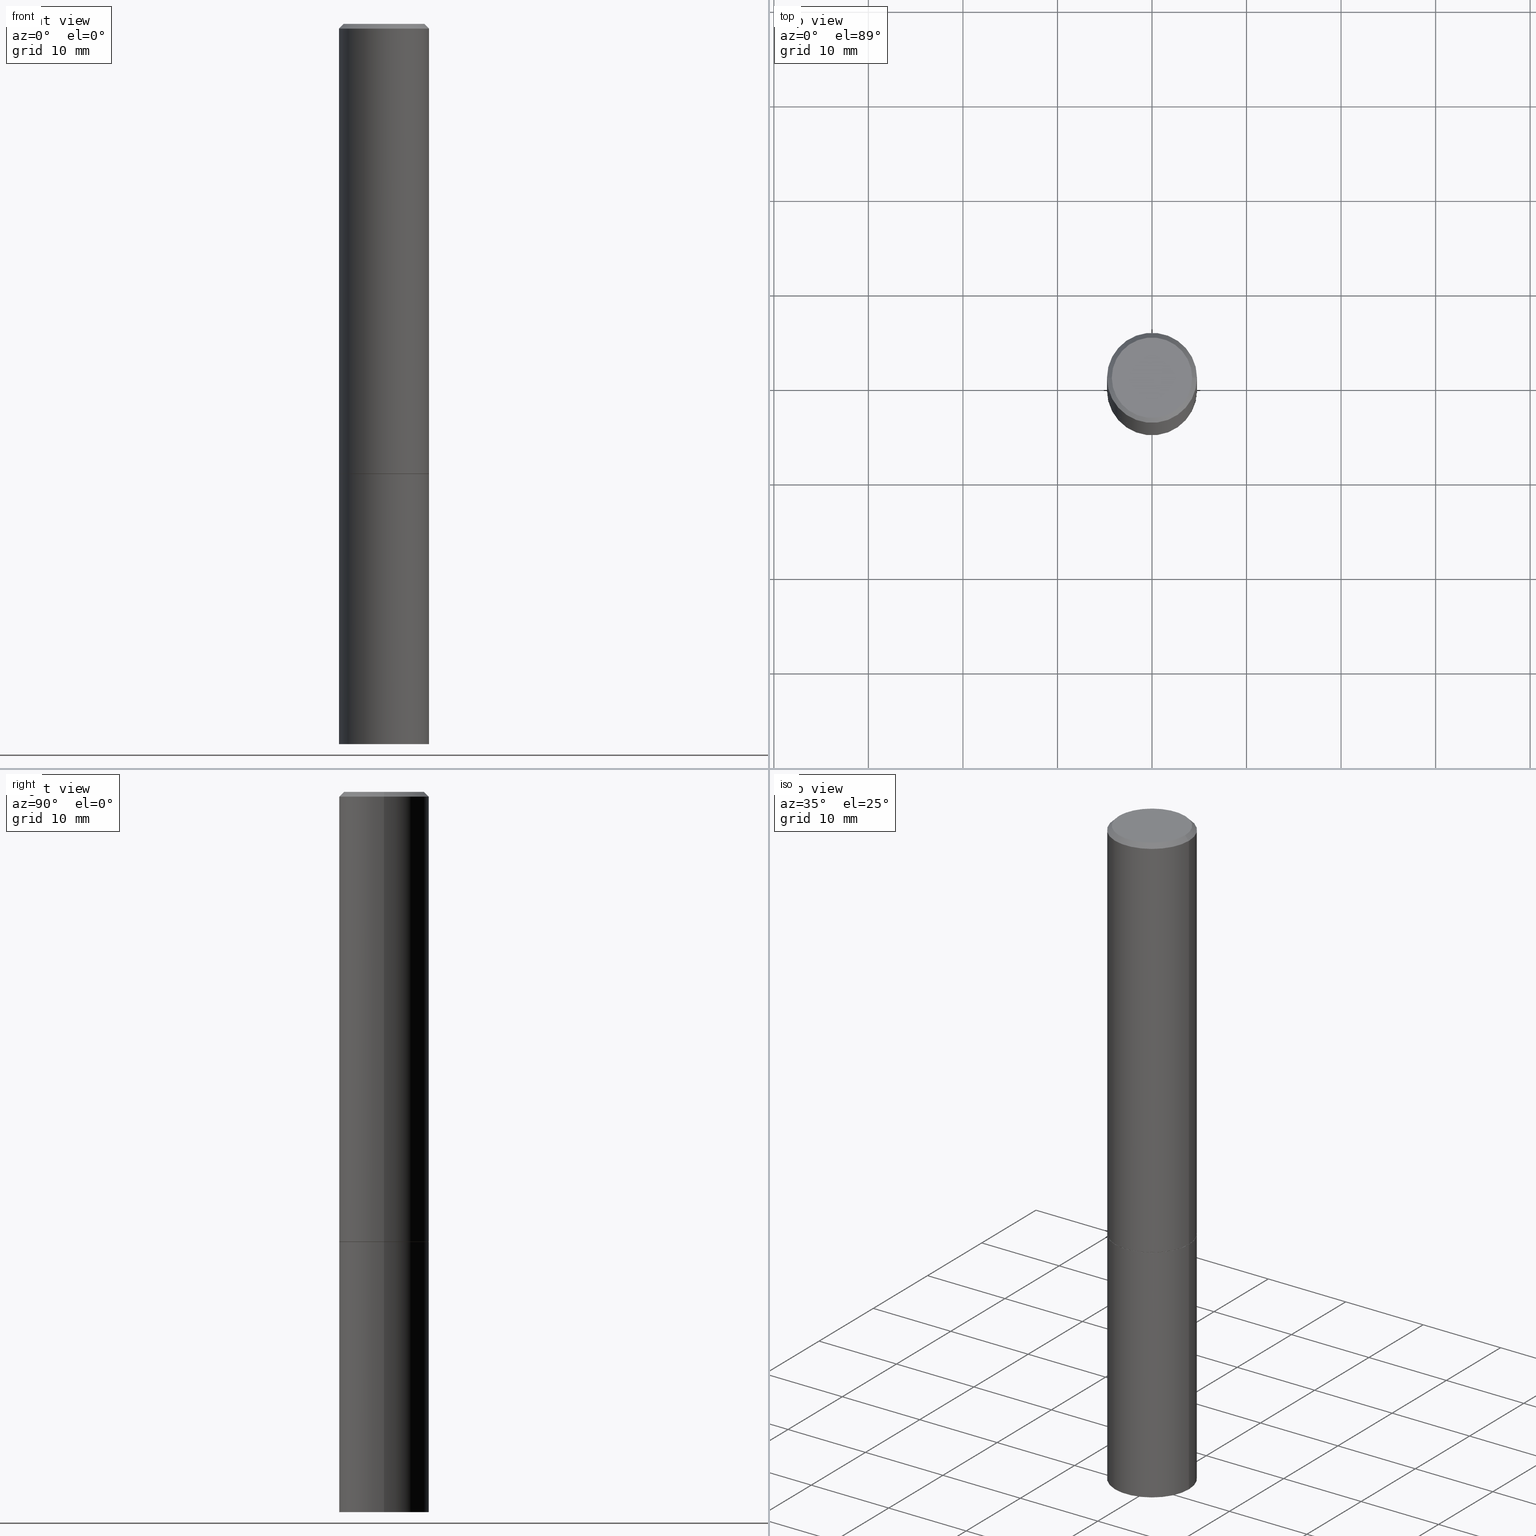
[diagram: canonical four-view strip — front | top / right | iso, engineering-drawing reading convention]
A machine part, canonical four-view strip (front | top / right | iso — engineering-drawing reading convention). The complete STEP part file that produces these views, byte-faithful:
ISO-10303-21;
HEADER;
FILE_DESCRIPTION (( 'STEP AP203' ),
    '1' );
FILE_NAME ('33107.STEP',
    '2023-03-21T20:37:46',
    ( '' ),
    ( '' ),
    'SwSTEP 2.0',
    'SolidWorks 2022',
    '' );
FILE_SCHEMA (( 'CONFIG_CONTROL_DESIGN' ));
ENDSEC;

DATA;
#1 = CARTESIAN_POINT ( 'NONE',  ( 4.585254011597130558E-29, -6.546527510330897918E-15, -1.874999999999999778 ) ) ;
#2 = CARTESIAN_POINT ( 'NONE',  ( -0.1864999999999999714, -5.221365308138311867E-15, -1.874999999999999778 ) ) ;
#3 = DIRECTION ( 'NONE',  ( 2.445468806185136597E-29, -3.491481338843145583E-15, -1.000000000000000000 ) ) ;
#4 = AXIS2_PLACEMENT_3D ( 'NONE', #216, #187, #34 ) ;
#5 = LOCAL_TIME ( 16, 37, 46.00000000000000000, #345 ) ;
#6 = DIRECTION ( 'NONE',  ( -1.000000000000000000, 6.982962677686265133E-15, 0.000000000000000000 ) ) ;
#7 = DIRECTION ( 'NONE',  ( -2.445468806185136597E-29, 3.491481338843145583E-15, 1.000000000000000000 ) ) ;
#8 =( LENGTH_UNIT ( ) NAMED_UNIT ( * ) SI_UNIT ( $, .METRE. ) );
#9 = PRODUCT_RELATED_PRODUCT_CATEGORY ( 'detail', '', ( #303 ) ) ;
#10 = CARTESIAN_POINT ( 'NONE',  ( -0.1875000000000000278, 1.332267629550188046E-15, -9.223003294227947991E-30 ) ) ;
#11 = CARTESIAN_POINT ( 'NONE',  ( 0.000000000000000000, 0.000000000000000000, 0.000000000000000000 ) ) ;
#12 = CARTESIAN_POINT ( 'NONE',  ( 0.000000000000000000, 0.000000000000000000, 0.000000000000000000 ) ) ;
#13 = EDGE_CURVE ( 'NONE', #202, #232, #47, .T. ) ;
#14 = ORIENTED_EDGE ( 'NONE', *, *, #323, .F. ) ;
#15 = FACE_OUTER_BOUND ( 'NONE', #319, .T. ) ;
#16 = DATE_TIME_ROLE ( 'creation_date' ) ;
#17 = EDGE_LOOP ( 'NONE', ( #236, #352, #117, #56 ) ) ;
#18 = DATE_AND_TIME ( #172, #261 ) ;
#19 = EDGE_CURVE ( 'NONE', #179, #356, #155, .T. ) ;
#20 = AXIS2_PLACEMENT_3D ( 'NONE', #341, #165, #6 ) ;
#21 = CALENDAR_DATE ( 2023, 21, 3 ) ;
#22 = EDGE_CURVE ( 'NONE', #264, #356, #234, .T. ) ;
#23 = COORDINATED_UNIVERSAL_TIME_OFFSET ( 5, 0, .BEHIND. ) ;
#24 = ORIENTED_EDGE ( 'NONE', *, *, #100, .F. ) ;
#25 = EDGE_CURVE ( 'NONE', #356, #179, #268, .T. ) ;
#26 = CARTESIAN_POINT ( 'NONE',  ( 0.1874999999999999167, -1.309305502066174219E-15, 9.142831454617375408E-30 ) ) ;
#27 = AXIS2_PLACEMENT_3D ( 'NONE', #197, #65, #302 ) ;
#28 = VERTEX_POINT ( 'NONE', #181 ) ;
#29 = ORIENTED_EDGE ( 'NONE', *, *, #13, .T. ) ;
#30 = CARTESIAN_POINT ( 'NONE',  ( 0.1864999999999999714, -7.848850049719386123E-15, -1.874999999999999778 ) ) ;
#31 = EDGE_CURVE ( 'NONE', #266, #28, #296, .T. ) ;
#32 = DIRECTION ( 'NONE',  ( 1.000000000000000000, -6.982962677686261189E-15, 0.000000000000000000 ) ) ;
#33 = DIRECTION ( 'NONE',  ( -2.445468806185136597E-29, 3.491481338843145583E-15, 1.000000000000000000 ) ) ;
#34 = DIRECTION ( 'NONE',  ( -1.000000000000000000, 6.982962677686265133E-15, 0.000000000000000000 ) ) ;
#35 = FACE_OUTER_BOUND ( 'NONE', #241, .T. ) ;
#36 = DIRECTION ( 'NONE',  ( 1.000000000000000000, -6.982962677686265133E-15, 0.000000000000000000 ) ) ;
#37 = APPROVAL_STATUS ( 'not_yet_approved' ) ;
#38 = CARTESIAN_POINT ( 'NONE',  ( 1.062839536534580214E-18, -1.044013511964626389E-14, -2.990173541384431033 ) ) ;
#39 = AXIS2_PLACEMENT_3D ( 'NONE', #1, #359, #183 ) ;
#40 = CC_DESIGN_SECURITY_CLASSIFICATION ( #178, ( #90 ) ) ;
#41 = FACE_OUTER_BOUND ( 'NONE', #299, .T. ) ;
#42 = CARTESIAN_POINT ( 'NONE',  ( 4.585254011597131119E-29, -6.546527510330898707E-15, -1.875000000000000000 ) ) ;
#43 = DIRECTION ( 'NONE',  ( -2.445468806185136877E-29, 3.491481338843145188E-15, 1.000000000000000000 ) ) ;
#44 = DIRECTION ( 'NONE',  ( 1.000000000000000000, -6.982962677686265922E-15, 4.876176775795935793E-29 ) ) ;
#45 = PRODUCT_DEFINITION ( 'UNKNOWN', '', #90, #203 ) ;
#46 = CARTESIAN_POINT ( 'NONE',  ( 1.309305502066220959E-15, 0.1874999999999934497, -1.875000000000000666 ) ) ;
#47 = CIRCLE ( 'NONE', #88, 0.1674999999999997879 ) ;
#48 = AXIS2_PLACEMENT_3D ( 'NONE', #363, #104, #101 ) ;
#49 = PERSON_AND_ORGANIZATION_ROLE ( 'creator' ) ;
#50 = EDGE_CURVE ( 'NONE', #329, #266, #206, .T. ) ;
#51 = ORIENTED_EDGE ( 'NONE', *, *, #267, .F. ) ;
#52 = AXIS2_PLACEMENT_3D ( 'NONE', #61, #301, #98 ) ;
#53 = APPROVAL_DATE_TIME ( #320, #390 ) ;
#54 = ORIENTED_EDGE ( 'NONE', *, *, #25, .T. ) ;
#55 = EDGE_CURVE ( 'NONE', #295, #95, #227, .T. ) ;
#56 = ORIENTED_EDGE ( 'NONE', *, *, #63, .T. ) ;
#57 = ORIENTED_EDGE ( 'NONE', *, *, #25, .F. ) ;
#58 = AXIS2_PLACEMENT_3D ( 'NONE', #76, #364, #336 ) ;
#59 = VERTEX_POINT ( 'NONE', #92 ) ;
#60 = CC_DESIGN_PERSON_AND_ORGANIZATION_ASSIGNMENT ( #72, #215, ( #303 ) ) ;
#61 = CARTESIAN_POINT ( 'NONE',  ( 4.890937612370283668E-31, -6.982962677686305168E-17, -0.02000000000000004205 ) ) ;
#62 = CIRCLE ( 'NONE', #39, 0.1864999999999999714 ) ;
#63 = EDGE_CURVE ( 'NONE', #199, #28, #293, .T. ) ;
#64 = MECHANICAL_CONTEXT ( 'NONE', #305, 'mechanical' ) ;
#65 = DIRECTION ( 'NONE',  ( 0.000000000000000000, 0.000000000000000000, 1.000000000000000000 ) ) ;
#66 = DIRECTION ( 'NONE',  ( 0.7071067811865466846, -7.319954787623252890E-15, -0.7071067811865483499 ) ) ;
#67 = DIRECTION ( 'NONE',  ( -2.445468806185136597E-29, 3.491481338843145583E-15, 1.000000000000000000 ) ) ;
#68 = ADVANCED_FACE ( 'NONE', ( #129 ), #176, .T. ) ;
#69 = CYLINDRICAL_SURFACE ( 'NONE', #284, 0.1874999999999999167 ) ;
#70 = CONICAL_SURFACE ( 'NONE', #58, 0.1864999999999999714, 0.7853981633975678500 ) ;
#71 = LOCAL_TIME ( 16, 37, 46.00000000000000000, #257 ) ;
#72 = PERSON_AND_ORGANIZATION ( #109, #243 ) ;
#73 = CC_DESIGN_PERSON_AND_ORGANIZATION_ASSIGNMENT ( #263, #287, ( #90 ) ) ;
#74 = DIRECTION ( 'NONE',  ( -2.445468806185136597E-29, 3.491481338843145583E-15, 1.000000000000000000 ) ) ;
#75 = CC_DESIGN_PERSON_AND_ORGANIZATION_ASSIGNMENT ( #317, #380, ( #45 ) ) ;
#76 = CARTESIAN_POINT ( 'NONE',  ( 4.585254011597130558E-29, -6.546527510330897918E-15, -1.874999999999999778 ) ) ;
#77 = CARTESIAN_POINT ( 'NONE',  ( 1.169646248512448215E-15, 0.1674999999999997879, -5.848231242562260795E-16 ) ) ;
#78 = PERSON_AND_ORGANIZATION ( #109, #243 ) ;
#79 = APPROVAL_PERSON_ORGANIZATION ( #304, #177, #161 ) ;
#80 = CALENDAR_DATE ( 2023, 21, 3 ) ;
#81 = ORIENTED_EDGE ( 'NONE', *, *, #13, .F. ) ;
#82 = APPROVAL_ROLE ( '' ) ;
#83 = ADVANCED_BREP_SHAPE_REPRESENTATION ( '33107', ( #137, #385, #27 ), #361 ) ;
#84 = CIRCLE ( 'NONE', #308, 0.1864999999999999714 ) ;
#85 = ORIENTED_EDGE ( 'NONE', *, *, #342, .T. ) ;
#86 = DIRECTION ( 'NONE',  ( -2.445468806185136877E-29, 3.491481338843145188E-15, 1.000000000000000000 ) ) ;
#87 = APPLICATION_CONTEXT ( 'configuration controlled 3d designs of mechanical parts and assemblies' ) ;
#88 = AXIS2_PLACEMENT_3D ( 'NONE', #209, #151, #91 ) ;
#89 = ADVANCED_FACE ( 'NONE', ( #158 ), #275, .T. ) ;
#90 = PRODUCT_DEFINITION_FORMATION_WITH_SPECIFIED_SOURCE ( 'ANY', '', #303, .NOT_KNOWN. ) ;
#91 = DIRECTION ( 'NONE',  ( 1.000000000000000000, -6.982962677686266711E-15, 4.876176775795935793E-29 ) ) ;
#92 = CARTESIAN_POINT ( 'NONE',  ( -0.1864999999999999714, -5.216066853790089465E-15, -1.874999999999999778 ) ) ;
#93 = ORIENTED_EDGE ( 'NONE', *, *, #338, .F. ) ;
#94 = ADVANCED_FACE ( 'NONE', ( #35 ), #70, .T. ) ;
#95 = VERTEX_POINT ( 'NONE', #102 ) ;
#96 = DIRECTION ( 'NONE',  ( -2.445468806185136597E-29, 3.491481338843145583E-15, 1.000000000000000000 ) ) ;
#97 = EDGE_CURVE ( 'NONE', #59, #329, #84, .T. ) ;
#98 = DIRECTION ( 'NONE',  ( 1.000000000000000000, -6.982962677686265133E-15, 0.000000000000000000 ) ) ;
#99 = DIRECTION ( 'NONE',  ( -2.445468806185136597E-29, 3.491481338843145583E-15, 1.000000000000000000 ) ) ;
#100 = EDGE_CURVE ( 'NONE', #264, #179, #310, .T. ) ;
#101 = DIRECTION ( 'NONE',  ( 1.000000000000000000, -6.982962677686266711E-15, 0.000000000000000000 ) ) ;
#102 = CARTESIAN_POINT ( 'NONE',  ( 0.1875000000000000278, -7.855833012397073715E-15, -1.875000000000000000 ) ) ;
#103 = DIRECTION ( 'NONE',  ( -0.7071067811865466846, 2.468850131082247989E-15, -0.7071067811865483499 ) ) ;
#104 = DIRECTION ( 'NONE',  ( -2.445468806185136597E-29, 3.491481338843145583E-15, 1.000000000000000000 ) ) ;
#105 = DIRECTION ( 'NONE',  ( 1.000000000000000000, -6.982962677686266711E-15, 0.000000000000000000 ) ) ;
#106 = AXIS2_PLACEMENT_3D ( 'NONE', #111, #344, #36 ) ;
#107 = DIRECTION ( 'NONE',  ( -0.7071067811866320607, 7.493145998870660238E-15, 0.7071067811864629737 ) ) ;
#108 = PLANE ( 'NONE',  #130 ) ;
#109 = PERSON ( 'UNSPECIFIED', 'UNSPECIFIED', 'UNSPECIFIED', ('UNSPECIFIED'), ('UNSPECIFIED'), ('UNSPECIFIED') ) ;
#110 = DATE_AND_TIME ( #21, #5 ) ;
#111 = CARTESIAN_POINT ( 'NONE',  ( 4.890937612370283668E-31, -6.982962677686305168E-17, -0.02000000000000004205 ) ) ;
#112 = SHAPE_DEFINITION_REPRESENTATION ( #328, #83 ) ;
#113 = AXIS2_PLACEMENT_3D ( 'NONE', #192, #74, #105 ) ;
#114 = SECURITY_CLASSIFICATION_LEVEL ( 'unclassified' ) ;
#115 = ORIENTED_EDGE ( 'NONE', *, *, #347, .T. ) ;
#116 = CALENDAR_DATE ( 2023, 21, 3 ) ;
#117 = ORIENTED_EDGE ( 'NONE', *, *, #267, .T. ) ;
#118 = CIRCLE ( 'NONE', #113, 0.1875000000000000278 ) ;
#119 = CC_DESIGN_APPROVAL ( #174, ( #178 ) ) ;
#120 = ORIENTED_EDGE ( 'NONE', *, *, #276, .F. ) ;
#121 = DIRECTION ( 'NONE',  ( -2.445468806185136597E-29, 3.491481338843145583E-15, 1.000000000000000000 ) ) ;
#122 = ORIENTED_EDGE ( 'NONE', *, *, #387, .F. ) ;
#123 = DIRECTION ( 'NONE',  ( 0.7071067811866320607, -2.468850131083142557E-15, 0.7071067811864629737 ) ) ;
#124 = DIMENSIONAL_EXPONENTS ( 1.000000000000000000, 0.000000000000000000, 0.000000000000000000, 0.000000000000000000, 0.000000000000000000, 0.000000000000000000, 0.000000000000000000 ) ;
#125 = AXIS2_PLACEMENT_3D ( 'NONE', #42, #369, #198 ) ;
#126 = CARTESIAN_POINT ( 'NONE',  ( 7.336406418555409790E-29, -1.047444401652943635E-14, -3.000000000000000444 ) ) ;
#127 = ORIENTED_EDGE ( 'NONE', *, *, #338, .T. ) ;
#128 = ADVANCED_FACE ( 'NONE', ( #278 ), #69, .T. ) ;
#129 = FACE_OUTER_BOUND ( 'NONE', #17, .T. ) ;
#130 = AXIS2_PLACEMENT_3D ( 'NONE', #77, #224, #343 ) ;
#131 = DIRECTION ( 'NONE',  ( -2.445468806185136877E-29, 3.491481338843145188E-15, 1.000000000000000000 ) ) ;
#132 = FACE_OUTER_BOUND ( 'NONE', #349, .T. ) ;
#133 = CARTESIAN_POINT ( 'NONE',  ( -0.1874999999999996947, -9.165138514463264501E-15, -3.000000000000000444 ) ) ;
#134 = CARTESIAN_POINT ( 'NONE',  ( 0.1875000000000000278, -7.852341531058230708E-15, -1.874000000000000110 ) ) ;
#135 =( NAMED_UNIT ( * ) PLANE_ANGLE_UNIT ( ) SI_UNIT ( $, .RADIAN. ) );
#136 = CARTESIAN_POINT ( 'NONE',  ( 0.1874999999999997780, -1.356173001359023691E-15, -0.02000000000000004205 ) ) ;
#137 = MANIFOLD_SOLID_BREP ( 'Body-Move/Copy2[1]', #189 ) ;
#138 = CARTESIAN_POINT ( 'NONE',  ( -0.1874999999999999167, 1.332267629550187257E-15, -9.223003294227943787E-30 ) ) ;
#139 = CARTESIAN_POINT ( 'NONE',  ( 0.000000000000000000, 0.000000000000000000, 0.000000000000000000 ) ) ;
#140 = VECTOR ( 'NONE', #43, 39.37007874015748143 ) ;
#141 = ORIENTED_EDGE ( 'NONE', *, *, #97, .F. ) ;
#142 = DIRECTION ( 'NONE',  ( -2.445468806185136597E-29, 3.491481338843145583E-15, 1.000000000000000000 ) ) ;
#143 = PERSON_AND_ORGANIZATION_ROLE ( 'classification_officer' ) ;
#144 = EDGE_LOOP ( 'NONE', ( #288, #240, #154, #322 ) ) ;
#145 = APPROVAL_DATE_TIME ( #18, #177 ) ;
#146 = AXIS2_PLACEMENT_3D ( 'NONE', #354, #367, #309 ) ;
#147 = DATE_AND_TIME ( #289, #327 ) ;
#148 = ADVANCED_FACE ( 'NONE', ( #200 ), #389, .F. ) ;
#149 = ORIENTED_EDGE ( 'NONE', *, *, #19, .F. ) ;
#150 = EDGE_LOOP ( 'NONE', ( #120, #141 ) ) ;
#151 = DIRECTION ( 'NONE',  ( -2.445468806185136597E-29, 3.491481338843145583E-15, 1.000000000000000000 ) ) ;
#152 = FACE_OUTER_BOUND ( 'NONE', #298, .T. ) ;
#153 = ORIENTED_EDGE ( 'NONE', *, *, #22, .T. ) ;
#154 = ORIENTED_EDGE ( 'NONE', *, *, #342, .F. ) ;
#155 = CIRCLE ( 'NONE', #370, 0.1875000000000000278 ) ;
#156 = LOCAL_TIME ( 16, 37, 46.00000000000000000, #23 ) ;
#157 = DIRECTION ( 'NONE',  ( 1.000000000000000000, -6.982962677686261189E-15, 0.000000000000000000 ) ) ;
#158 = FACE_OUTER_BOUND ( 'NONE', #186, .T. ) ;
#159 = APPLICATION_PROTOCOL_DEFINITION ( 'international standard', 'config_control_design', 1994, #87 ) ;
#160 = CARTESIAN_POINT ( 'NONE',  ( -0.1674999999999997879, 1.204561061900879272E-15, -8.301862719484101980E-30 ) ) ;
#161 = APPROVAL_ROLE ( '' ) ;
#162 = CYLINDRICAL_SURFACE ( 'NONE', #377, 0.1875000000000000278 ) ;
#163 = EDGE_CURVE ( 'NONE', #202, #28, #220, .T. ) ;
#164 = CARTESIAN_POINT ( 'NONE',  ( 0.1674999999999997879, -1.252653207992876908E-15, 8.469775550109228175E-30 ) ) ;
#165 = DIRECTION ( 'NONE',  ( 2.445468806185136597E-29, -3.491481338843145583E-15, -1.000000000000000000 ) ) ;
#166 = FACE_OUTER_BOUND ( 'NONE', #150, .T. ) ;
#167 = APPLICATION_PROTOCOL_DEFINITION ( 'international standard', 'config_control_design', 1994, #305 ) ;
#168 = DIRECTION ( 'NONE',  ( 0.9986295347545742773, -7.033825938272001856E-15, -0.05233595624293820026 ) ) ;
#169 = CIRCLE ( 'NONE', #383, 0.1674999999999997879 ) ;
#170 = PERSON_AND_ORGANIZATION ( #109, #243 ) ;
#171 = EDGE_LOOP ( 'NONE', ( #24, #153, #149 ) ) ;
#172 = CALENDAR_DATE ( 2023, 21, 3 ) ;
#173 = ORIENTED_EDGE ( 'NONE', *, *, #19, .T. ) ;
#174 = APPROVAL ( #231, 'UNSPECIFIED' ) ;
#175 = EDGE_CURVE ( 'NONE', #212, #266, #118, .T. ) ;
#176 = CONICAL_SURFACE ( 'NONE', #4, 0.1874999999999997780, 0.7853981633974471688 ) ;
#177 = APPROVAL ( #37, 'UNSPECIFIED' ) ;
#178 = SECURITY_CLASSIFICATION ( '', '', #114 ) ;
#179 = VERTEX_POINT ( 'NONE', #339 ) ;
#180 = ADVANCED_FACE ( 'NONE', ( #249 ), #108, .F. ) ;
#181 = CARTESIAN_POINT ( 'NONE',  ( 0.1874999999999997780, -1.356173001359023691E-15, -0.02000000000000004205 ) ) ;
#182 = EDGE_LOOP ( 'NONE', ( #93, #384, #373, #235 ) ) ;
#183 = DIRECTION ( 'NONE',  ( 1.000000000000000000, -6.982962677686269077E-15, 0.000000000000000000 ) ) ;
#184 = AXIS2_PLACEMENT_3D ( 'NONE', #253, #3, #281 ) ;
#185 = DIRECTION ( 'NONE',  ( -2.445468806185136597E-29, 3.491481338843145583E-15, 1.000000000000000000 ) ) ;
#186 = EDGE_LOOP ( 'NONE', ( #85, #127, #318, #258 ) ) ;
#187 = DIRECTION ( 'NONE',  ( 2.445468806185136597E-29, -3.491481338843145583E-15, -1.000000000000000000 ) ) ;
#188 = CC_DESIGN_DATE_AND_TIME_ASSIGNMENT ( #110, #16, ( #45 ) ) ;
#189 = CLOSED_SHELL ( 'NONE', ( #255, #280, #148, #211, #196 ) ) ;
#190 = AXIS2_PLACEMENT_3D ( 'NONE', #245, #67, #277 ) ;
#191 = ADVANCED_FACE ( 'NONE', ( #166 ), #283, .F. ) ;
#192 = CARTESIAN_POINT ( 'NONE',  ( 4.582808542790945516E-29, -6.543036028992054911E-15, -1.874000000000000110 ) ) ;
#193 = VECTOR ( 'NONE', #86, 39.37007874015748143 ) ;
#194 = FACE_OUTER_BOUND ( 'NONE', #353, .T. ) ;
#195 = DIRECTION ( 'NONE',  ( -1.000000000000000000, 6.982962677686265922E-15, -4.876176775795935793E-29 ) ) ;
#196 = ADVANCED_FACE ( 'NONE', ( #194 ), #313, .F. ) ;
#197 = CARTESIAN_POINT ( 'NONE',  ( 0.000000000000000000, 0.000000000000000000, 0.000000000000000000 ) ) ;
#198 = DIRECTION ( 'NONE',  ( 1.000000000000000000, -6.982962677686265922E-15, 4.876176775795935793E-29 ) ) ;
#199 = VERTEX_POINT ( 'NONE', #306 ) ;
#200 = FACE_OUTER_BOUND ( 'NONE', #171, .T. ) ;
#201 = ORIENTED_EDGE ( 'NONE', *, *, #366, .T. ) ;
#202 = VERTEX_POINT ( 'NONE', #164 ) ;
#203 = DESIGN_CONTEXT ( 'detailed design', #87, 'design' ) ;
#204 = CIRCLE ( 'NONE', #190, 0.1875000000000000278 ) ;
#205 = ORIENTED_EDGE ( 'NONE', *, *, #163, .T. ) ;
#206 = LINE ( 'NONE', #30, #340 ) ;
#207 = ORIENTED_EDGE ( 'NONE', *, *, #333, .T. ) ;
#208 = AXIS2_PLACEMENT_3D ( 'NONE', #358, #96, #213 ) ;
#209 = CARTESIAN_POINT ( 'NONE',  ( 0.000000000000000000, 0.000000000000000000, 0.000000000000000000 ) ) ;
#210 = DIRECTION ( 'NONE',  ( -2.445468806185136597E-29, 3.491481338843145583E-15, 1.000000000000000000 ) ) ;
#211 = ADVANCED_FACE ( 'NONE', ( #15 ), #226, .T. ) ;
#212 = VERTEX_POINT ( 'NONE', #374 ) ;
#213 = DIRECTION ( 'NONE',  ( 1.000000000000000000, -6.982962677686265922E-15, 4.876176775795935793E-29 ) ) ;
#214 = CIRCLE ( 'NONE', #48, 0.1875000000000000278 ) ;
#215 = PERSON_AND_ORGANIZATION_ROLE ( 'design_owner' ) ;
#216 = CARTESIAN_POINT ( 'NONE',  ( 4.890937612370283668E-31, -6.982962677686305168E-17, -0.02000000000000004205 ) ) ;
#217 = CARTESIAN_POINT ( 'NONE',  ( -0.1875000000000000278, -7.178218133879978893E-15, -1.875000000000000000 ) ) ;
#218 = DIRECTION ( 'NONE',  ( 1.000000000000000000, -6.982962677686265922E-15, 4.876176775795935793E-29 ) ) ;
#219 = LINE ( 'NONE', #279, #300 ) ;
#220 = LINE ( 'NONE', #136, #233 ) ;
#221 = VECTOR ( 'NONE', #103, 39.37007874015748143 ) ;
#222 =( CONVERSION_BASED_UNIT ( 'INCH', #223 ) LENGTH_UNIT ( ) NAMED_UNIT ( #124 ) );
#223 = LENGTH_MEASURE_WITH_UNIT ( LENGTH_MEASURE( 0.02539999999999999897 ), #8 );
#224 = DIRECTION ( 'NONE',  ( 2.438088387897960049E-29, -3.491481338843145188E-15, -1.000000000000000000 ) ) ;
#225 = UNCERTAINTY_MEASURE_WITH_UNIT (LENGTH_MEASURE( 1.000000000000000082E-05 ), #222, 'distance_accuracy_value', 'NONE');
#226 = CYLINDRICAL_SURFACE ( 'NONE', #332, 0.1875000000000000278 ) ;
#227 = CIRCLE ( 'NONE', #355, 0.1875000000000000278 ) ;
#228 = EDGE_CURVE ( 'NONE', #28, #199, #297, .T. ) ;
#229 = DATE_TIME_ROLE ( 'classification_date' ) ;
#230 = ORIENTED_EDGE ( 'NONE', *, *, #50, .T. ) ;
#231 = APPROVAL_STATUS ( 'not_yet_approved' ) ;
#232 = VERTEX_POINT ( 'NONE', #160 ) ;
#233 = VECTOR ( 'NONE', #66, 39.37007874015748143 ) ;
#234 = LINE ( 'NONE', #351, #307 ) ;
#235 = ORIENTED_EDGE ( 'NONE', *, *, #63, .F. ) ;
#236 = ORIENTED_EDGE ( 'NONE', *, *, #163, .F. ) ;
#237 = DIRECTION ( 'NONE',  ( 1.000000000000000000, -6.982962677686266711E-15, 0.000000000000000000 ) ) ;
#238 = VECTOR ( 'NONE', #131, 39.37007874015748143 ) ;
#239 = CC_DESIGN_DATE_AND_TIME_ASSIGNMENT ( #147, #229, ( #178 ) ) ;
#240 = ORIENTED_EDGE ( 'NONE', *, *, #387, .T. ) ;
#241 = EDGE_LOOP ( 'NONE', ( #122, #271, #230, #381 ) ) ;
#242 = VECTOR ( 'NONE', #168, 39.37007874015748854 ) ;
#243 = ORGANIZATION ( 'UNSPECIFIED', 'UNSPECIFIED', '' ) ;
#244 = APPROVAL_PERSON_ORGANIZATION ( #78, #390, #262 ) ;
#245 = CARTESIAN_POINT ( 'NONE',  ( 4.582808542790945516E-29, -6.543036028992054911E-15, -1.874000000000000110 ) ) ;
#246 = CARTESIAN_POINT ( 'NONE',  ( 0.000000000000000000, 0.000000000000000000, 0.000000000000000000 ) ) ;
#247 = LINE ( 'NONE', #368, #221 ) ;
#248 =( NAMED_UNIT ( * ) SI_UNIT ( $, .STERADIAN. ) SOLID_ANGLE_UNIT ( ) );
#249 = FACE_OUTER_BOUND ( 'NONE', #386, .T. ) ;
#250 = CONICAL_SURFACE ( 'NONE', #20, 0.1874999999999997780, 0.7853981633974471688 ) ;
#251 = DIRECTION ( 'NONE',  ( 1.000000000000000000, -6.982962677686266711E-15, 4.876176775795935793E-29 ) ) ;
#252 = CC_DESIGN_PERSON_AND_ORGANIZATION_ASSIGNMENT ( #259, #49, ( #90 ) ) ;
#253 = CARTESIAN_POINT ( 'NONE',  ( 1.035906755766434990E-27, -1.479000303496913744E-13, -42.36025228154191069 ) ) ;
#254 = LINE ( 'NONE', #10, #238 ) ;
#255 = ADVANCED_FACE ( 'NONE', ( #132 ), #162, .T. ) ;
#256 = DIRECTION ( 'NONE',  ( 1.000000000000000000, -6.982962677686265922E-15, 4.876176775795935793E-29 ) ) ;
#257 = COORDINATED_UNIVERSAL_TIME_OFFSET ( 5, 0, .BEHIND. ) ;
#258 = ORIENTED_EDGE ( 'NONE', *, *, #31, .F. ) ;
#259 = PERSON_AND_ORGANIZATION ( #109, #243 ) ;
#260 = AXIS2_PLACEMENT_3D ( 'NONE', #291, #121, #331 ) ;
#261 = LOCAL_TIME ( 16, 37, 46.00000000000000000, #350 ) ;
#262 = APPROVAL_ROLE ( '' ) ;
#263 = PERSON_AND_ORGANIZATION ( #109, #243 ) ;
#264 = VERTEX_POINT ( 'NONE', #337 ) ;
#265 = FACE_OUTER_BOUND ( 'NONE', #144, .T. ) ;
#266 = VERTEX_POINT ( 'NONE', #134 ) ;
#267 = EDGE_CURVE ( 'NONE', #232, #199, #247, .T. ) ;
#268 = CIRCLE ( 'NONE', #314, 0.1875000000000000278 ) ;
#269 = VECTOR ( 'NONE', #107, 39.37007874015748143 ) ;
#270 = CARTESIAN_POINT ( 'NONE',  ( 7.336406418555409790E-29, -1.047444401652943635E-14, -3.000000000000000444 ) ) ;
#271 = ORIENTED_EDGE ( 'NONE', *, *, #97, .T. ) ;
#272 = DIRECTION ( 'NONE',  ( -0.9986295347545742773, 6.790662755453662155E-15, -0.05233595624293820026 ) ) ;
#273 = CONICAL_SURFACE ( 'NONE', #146, 751.2258538476485228, 1.518436449235072372 ) ;
#274 = ADVANCED_FACE ( 'NONE', ( #265 ), #321, .T. ) ;
#275 = CYLINDRICAL_SURFACE ( 'NONE', #208, 0.1874999999999999167 ) ;
#276 = EDGE_CURVE ( 'NONE', #329, #59, #62, .T. ) ;
#277 = DIRECTION ( 'NONE',  ( 1.000000000000000000, -6.982962677686266711E-15, 0.000000000000000000 ) ) ;
#278 = FACE_OUTER_BOUND ( 'NONE', #182, .T. ) ;
#279 = CARTESIAN_POINT ( 'NONE',  ( 0.1875000000000000278, -1.309305502066175008E-15, 9.142831454617381013E-30 ) ) ;
#280 = ADVANCED_FACE ( 'NONE', ( #152 ), #273, .F. ) ;
#281 = DIRECTION ( 'NONE',  ( -1.000000000000000000, 6.982962677686266711E-15, 0.000000000000000000 ) ) ;
#282 = DIRECTION ( 'NONE',  ( -2.445468806185136597E-29, 3.491481338843145583E-15, 1.000000000000000000 ) ) ;
#283 = PLANE ( 'NONE',  #125 ) ;
#284 = AXIS2_PLACEMENT_3D ( 'NONE', #139, #7, #44 ) ;
#285 = LINE ( 'NONE', #138, #140 ) ;
#286 = DIRECTION ( 'NONE',  ( 2.438088387897960049E-29, -3.491481338843145188E-15, -1.000000000000000000 ) ) ;
#287 = PERSON_AND_ORGANIZATION_ROLE ( 'design_supplier' ) ;
#288 = ORIENTED_EDGE ( 'NONE', *, *, #276, .T. ) ;
#289 = CALENDAR_DATE ( 2023, 21, 3 ) ;
#290 = ORIENTED_EDGE ( 'NONE', *, *, #228, .T. ) ;
#291 = CARTESIAN_POINT ( 'NONE',  ( 4.585254011597130558E-29, -6.546527510330897918E-15, -1.874999999999999778 ) ) ;
#292 = COORDINATED_UNIVERSAL_TIME_OFFSET ( 5, 0, .BEHIND. ) ;
#293 = CIRCLE ( 'NONE', #52, 0.1874999999999997780 ) ;
#294 = APPROVAL_PERSON_ORGANIZATION ( #346, #174, #82 ) ;
#295 = VERTEX_POINT ( 'NONE', #217 ) ;
#296 = LINE ( 'NONE', #26, #193 ) ;
#297 = CIRCLE ( 'NONE', #106, 0.1874999999999997780 ) ;
#298 = EDGE_LOOP ( 'NONE', ( #324, #379, #57 ) ) ;
#299 = EDGE_LOOP ( 'NONE', ( #81, #205, #290, #51 ) ) ;
#300 = VECTOR ( 'NONE', #335, 39.37007874015748143 ) ;
#301 = DIRECTION ( 'NONE',  ( -2.445468806185136597E-29, 3.491481338843145583E-15, 1.000000000000000000 ) ) ;
#302 = DIRECTION ( 'NONE',  ( 1.000000000000000000, 0.000000000000000000, 0.000000000000000000 ) ) ;
#303 = PRODUCT ( '33107', '33107', '', ( #64 ) ) ;
#304 = PERSON_AND_ORGANIZATION ( #109, #243 ) ;
#305 = APPLICATION_CONTEXT ( 'configuration controlled 3d designs of mechanical parts and assemblies' ) ;
#306 = CARTESIAN_POINT ( 'NONE',  ( -0.1874999999999997780, 1.239475875289310330E-15, -0.02000000000000004205 ) ) ;
#307 = VECTOR ( 'NONE', #272, 39.37007874015748854 ) ;
#308 = AXIS2_PLACEMENT_3D ( 'NONE', #372, #312, #365 ) ;
#309 = DIRECTION ( 'NONE',  ( -1.000000000000000000, 6.982962677686266711E-15, 0.000000000000000000 ) ) ;
#310 = LINE ( 'NONE', #38, #242 ) ;
#311 = CARTESIAN_POINT ( 'NONE',  ( 0.1864999999999999714, -7.848850049719386123E-15, -1.874999999999999778 ) ) ;
#312 = DIRECTION ( 'NONE',  ( -2.445468806185136597E-29, 3.491481338843145583E-15, 1.000000000000000000 ) ) ;
#313 = PLANE ( 'NONE',  #326 ) ;
#314 = AXIS2_PLACEMENT_3D ( 'NONE', #270, #33, #157 ) ;
#315 = APPROVAL_DATE_TIME ( #375, #174 ) ;
#316 = ORIENTED_EDGE ( 'NONE', *, *, #366, .F. ) ;
#317 = PERSON_AND_ORGANIZATION ( #109, #243 ) ;
#318 = ORIENTED_EDGE ( 'NONE', *, *, #228, .F. ) ;
#319 = EDGE_LOOP ( 'NONE', ( #348, #54, #325, #376 ) ) ;
#320 = DATE_AND_TIME ( #116, #156 ) ;
#321 = CONICAL_SURFACE ( 'NONE', #260, 0.1864999999999999714, 0.7853981633975678500 ) ;
#322 = ORIENTED_EDGE ( 'NONE', *, *, #50, .F. ) ;
#323 = EDGE_CURVE ( 'NONE', #179, #95, #219, .T. ) ;
#324 = ORIENTED_EDGE ( 'NONE', *, *, #22, .F. ) ;
#325 = ORIENTED_EDGE ( 'NONE', *, *, #323, .T. ) ;
#326 = AXIS2_PLACEMENT_3D ( 'NONE', #46, #286, #195 ) ;
#327 = LOCAL_TIME ( 16, 37, 46.00000000000000000, #292 ) ;
#328 = PRODUCT_DEFINITION_SHAPE ( 'NONE', 'NONE',  #45 ) ;
#329 = VERTEX_POINT ( 'NONE', #311 ) ;
#330 = ADVANCED_FACE ( 'NONE', ( #41 ), #250, .T. ) ;
#331 = DIRECTION ( 'NONE',  ( 1.000000000000000000, -6.982962677686269077E-15, 0.000000000000000000 ) ) ;
#332 = AXIS2_PLACEMENT_3D ( 'NONE', #11, #142, #256 ) ;
#333 = EDGE_CURVE ( 'NONE', #356, #295, #254, .T. ) ;
#334 = CC_DESIGN_APPROVAL ( #177, ( #45 ) ) ;
#335 = DIRECTION ( 'NONE',  ( -2.445468806185136877E-29, 3.491481338843145188E-15, 1.000000000000000000 ) ) ;
#336 = DIRECTION ( 'NONE',  ( 1.000000000000000000, -6.982962677686269077E-15, 0.000000000000000000 ) ) ;
#337 = CARTESIAN_POINT ( 'NONE',  ( 7.313118297417314637E-29, -1.043907228010980217E-14, -2.990173541384431033 ) ) ;
#338 = EDGE_CURVE ( 'NONE', #212, #199, #285, .T. ) ;
#339 = CARTESIAN_POINT ( 'NONE',  ( 0.1874999999999996947, -1.176078739111159694E-14, -3.000000000000000444 ) ) ;
#340 = VECTOR ( 'NONE', #123, 39.37007874015748143 ) ;
#341 = CARTESIAN_POINT ( 'NONE',  ( 4.890937612370283668E-31, -6.982962677686305168E-17, -0.02000000000000004205 ) ) ;
#342 = EDGE_CURVE ( 'NONE', #266, #212, #204, .T. ) ;
#343 = DIRECTION ( 'NONE',  ( -1.000000000000000000, 6.982962677686265922E-15, -4.876176775795935793E-29 ) ) ;
#344 = DIRECTION ( 'NONE',  ( -2.445468806185136597E-29, 3.491481338843145583E-15, 1.000000000000000000 ) ) ;
#345 = COORDINATED_UNIVERSAL_TIME_OFFSET ( 5, 0, .BEHIND. ) ;
#346 = PERSON_AND_ORGANIZATION ( #109, #243 ) ;
#347 = EDGE_CURVE ( 'NONE', #232, #202, #169, .T. ) ;
#348 = ORIENTED_EDGE ( 'NONE', *, *, #333, .F. ) ;
#349 = EDGE_LOOP ( 'NONE', ( #173, #207, #316, #14 ) ) ;
#350 = COORDINATED_UNIVERSAL_TIME_OFFSET ( 5, 0, .BEHIND. ) ;
#351 = CARTESIAN_POINT ( 'NONE',  ( -1.062839536388332797E-18, -1.044013511964626389E-14, -2.990173541384431033 ) ) ;
#352 = ORIENTED_EDGE ( 'NONE', *, *, #347, .F. ) ;
#353 = EDGE_LOOP ( 'NONE', ( #201, #388 ) ) ;
#354 = CARTESIAN_POINT ( 'NONE',  ( 1.035906755766434990E-27, -1.479000303496913744E-13, -42.36025228154191069 ) ) ;
#355 = AXIS2_PLACEMENT_3D ( 'NONE', #360, #210, #237 ) ;
#356 = VERTEX_POINT ( 'NONE', #133 ) ;
#357 = CC_DESIGN_PERSON_AND_ORGANIZATION_ASSIGNMENT ( #170, #143, ( #178 ) ) ;
#358 = CARTESIAN_POINT ( 'NONE',  ( 0.000000000000000000, 0.000000000000000000, 0.000000000000000000 ) ) ;
#359 = DIRECTION ( 'NONE',  ( -2.445468806185136597E-29, 3.491481338843145583E-15, 1.000000000000000000 ) ) ;
#360 = CARTESIAN_POINT ( 'NONE',  ( 4.585254011597131119E-29, -6.546527510330898707E-15, -1.875000000000000000 ) ) ;
#361 =( GEOMETRIC_REPRESENTATION_CONTEXT ( 3 ) GLOBAL_UNCERTAINTY_ASSIGNED_CONTEXT ( ( #225 ) ) GLOBAL_UNIT_ASSIGNED_CONTEXT ( ( #222, #135, #248 ) ) REPRESENTATION_CONTEXT ( 'NONE', 'WORKASPACE' ) );
#362 = CC_DESIGN_APPROVAL ( #390, ( #90 ) ) ;
#363 = CARTESIAN_POINT ( 'NONE',  ( 4.585254011597131119E-29, -6.546527510330898707E-15, -1.875000000000000000 ) ) ;
#364 = DIRECTION ( 'NONE',  ( -2.445468806185136597E-29, 3.491481338843145583E-15, 1.000000000000000000 ) ) ;
#365 = DIRECTION ( 'NONE',  ( 1.000000000000000000, -6.982962677686269077E-15, 0.000000000000000000 ) ) ;
#366 = EDGE_CURVE ( 'NONE', #95, #295, #214, .T. ) ;
#367 = DIRECTION ( 'NONE',  ( 2.445468806185136597E-29, -3.491481338843145583E-15, -1.000000000000000000 ) ) ;
#368 = CARTESIAN_POINT ( 'NONE',  ( -0.1874999999999997780, 1.239475875289310330E-15, -0.02000000000000004205 ) ) ;
#369 = DIRECTION ( 'NONE',  ( -2.438088387897960049E-29, 3.491481338843145188E-15, 1.000000000000000000 ) ) ;
#370 = AXIS2_PLACEMENT_3D ( 'NONE', #126, #185, #32 ) ;
#371 = LINE ( 'NONE', #2, #269 ) ;
#372 = CARTESIAN_POINT ( 'NONE',  ( 4.585254011597130558E-29, -6.546527510330897918E-15, -1.874999999999999778 ) ) ;
#373 = ORIENTED_EDGE ( 'NONE', *, *, #31, .T. ) ;
#374 = CARTESIAN_POINT ( 'NONE',  ( -0.1874999999999999722, -1.974165198334270073E-15, -1.874000000000000110 ) ) ;
#375 = DATE_AND_TIME ( #80, #71 ) ;
#376 = ORIENTED_EDGE ( 'NONE', *, *, #55, .F. ) ;
#377 = AXIS2_PLACEMENT_3D ( 'NONE', #246, #99, #218 ) ;
#378 = APPROVAL_STATUS ( 'not_yet_approved' ) ;
#379 = ORIENTED_EDGE ( 'NONE', *, *, #100, .T. ) ;
#380 = PERSON_AND_ORGANIZATION_ROLE ( 'creator' ) ;
#381 = ORIENTED_EDGE ( 'NONE', *, *, #175, .F. ) ;
#382 = CLOSED_SHELL ( 'NONE', ( #274, #89, #330, #68, #128, #94, #191, #180 ) ) ;
#383 = AXIS2_PLACEMENT_3D ( 'NONE', #12, #282, #251 ) ;
#384 = ORIENTED_EDGE ( 'NONE', *, *, #175, .T. ) ;
#385 = MANIFOLD_SOLID_BREP ( 'Body-Move/Copy2[2]', #382 ) ;
#386 = EDGE_LOOP ( 'NONE', ( #115, #29 ) ) ;
#387 = EDGE_CURVE ( 'NONE', #59, #212, #371, .T. ) ;
#388 = ORIENTED_EDGE ( 'NONE', *, *, #55, .T. ) ;
#389 = CONICAL_SURFACE ( 'NONE', #184, 751.2258538476485228, 1.518436449235072372 ) ;
#390 = APPROVAL ( #378, 'UNSPECIFIED' ) ;
ENDSEC;
END-ISO-10303-21;
